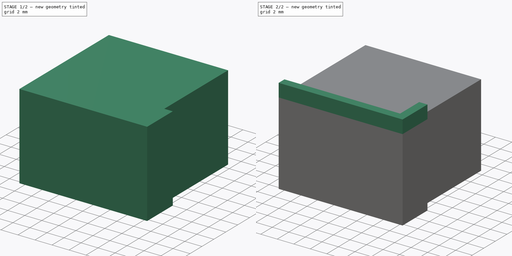
[diagram: build sequence overview — one tinted view per stage of 2, left to right]
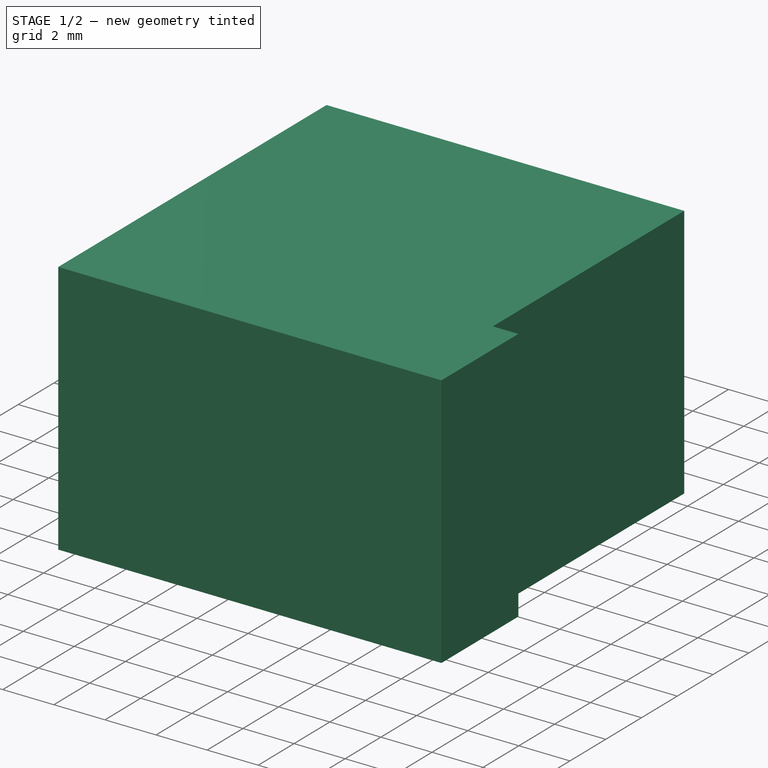
[diagram: stage 1 of 2 — iso view after this stage's code; geometry added in this stage tinted green]
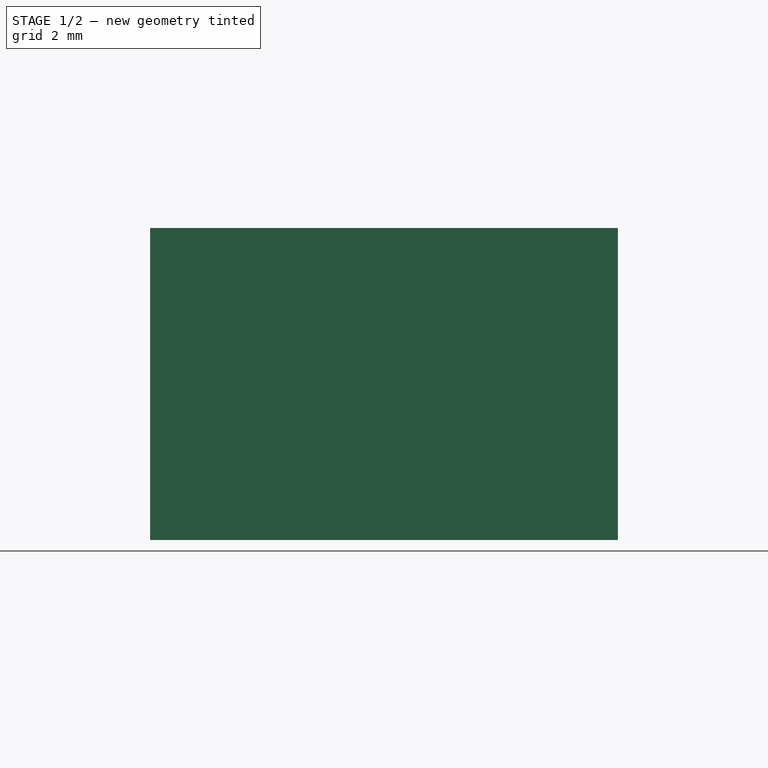
[diagram: stage 1 of 2 — front view after this stage's code; geometry added in this stage tinted green]
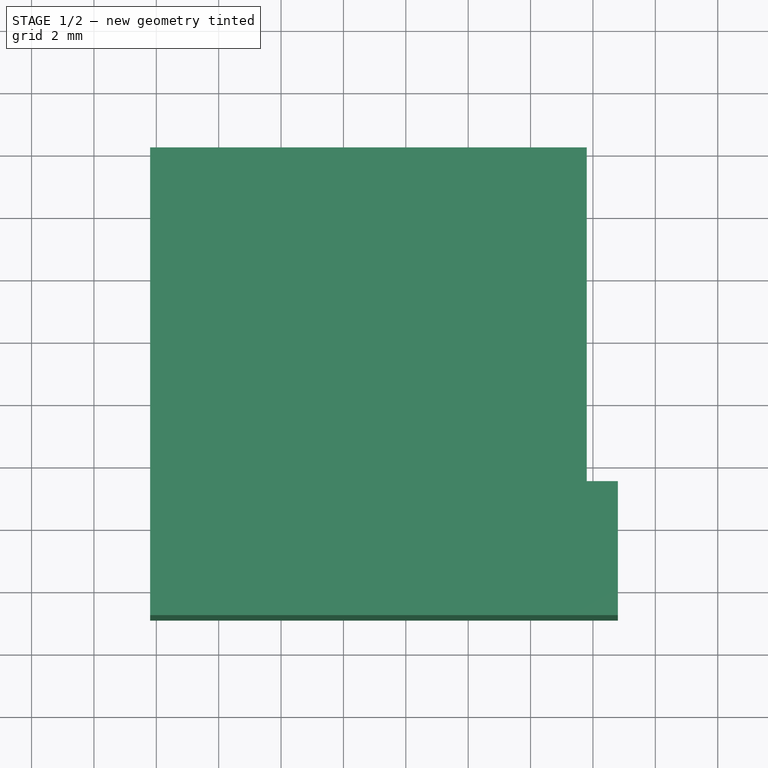
[diagram: stage 1 of 2 — top view after this stage's code; geometry added in this stage tinted green]
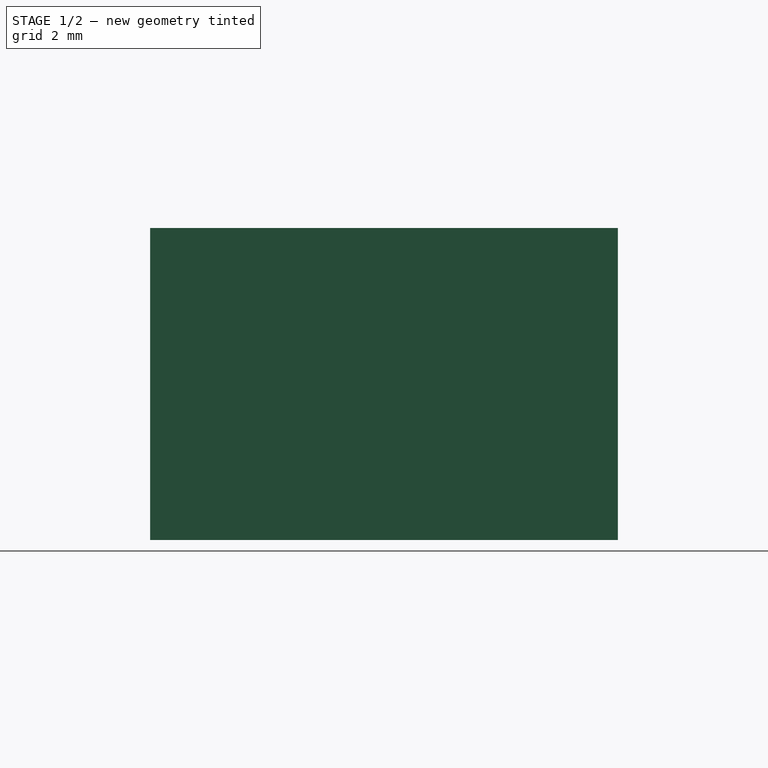
[diagram: stage 1 of 2 — right view after this stage's code; geometry added in this stage tinted green]
FCSTD DOCUMENT  (FreeCAD 0.19R24267 +148 (Git))
Label: digispark
License: Public Domain
LicenseURL: http://en.wikipedia.org/wiki/Public_domain
objects: Part::Feature×5, App::Part×2, Sketcher::SketchObject×2, PartDesign::Pad×2, Spreadsheet::Sheet×1, PartDesign::Body×1
note: 12 computed .brp shape members not serialized (recipe doc carries the construction recipe); baked Part::Feature solids carry a one-line shape summary decoded from their .brp

FEATURE [Part::Feature] Part__Feature  label="Digispark - Board simple"
  shape: bbox 26.5 x 19 x 1.673 mm, 48 faces (baked)
FEATURE [Part::Feature] Part__Feature001  label="TO-252AA-IRF"
  Placement = pos=(41.0682,33.0403,1.6231) rot=(0,0,1;1.5708rad)
  shape: bbox 10.42 x 6.718 x 2.389 mm, 99 faces, 5 solids (baked)
FEATURE [Part::Feature] Part__Feature002  label="8S2 EIAJ SOIC - ATtiny85 20SU_Valor predeterminado"
  Placement = pos=(42.8058,41.0082,1.6231) rot=(1,0,0;1.5708rad)
  shape: bbox 8 x 5.25 x 2.58 mm, 114 faces (baked)
FEATURE [Part::Feature] Part__Feature003  label="DS1021-1x3SF11"
  Placement = pos=(37.32,27.15,1.6231) rot=(0,0,1;0rad)
  shape: bbox 7.62 x 2.54 x 11.6 mm, 100 faces, 4 solids (baked)
FEATURE [Part::Feature] Part__Feature004  label="DS1021-1x6SF11"
  Placement = pos=(50.1501,42.35,1.6231) rot=(0,0,-1;1.5708rad)
  shape: bbox 2.54 x 15.24 x 11.6 mm, 196 faces, 7 solids (baked)
FEATURE [App::Part] DigiSpark_ATtiny85  label="DigiSpark ATtiny85"
  Group = -> [Part__Feature,Part__Feature001,Part__Feature002,Part__Feature003,Part__Feature004]
  Origin = -> Origin
  Placement = pos=(50.2,42.4,0) rot=(0,0,1;3.14159rad)
FEATURE [App::Part] Part  label="digisparkRepositionnedPrt"
  Group = -> [DigiSpark_ATtiny85]
  Origin = -> Origin001
FEATURE [Spreadsheet::Sheet] Spreadsheet  label="digisparkSp"
  cells = A2=supportLarg; B2(supportLarg)=14; C2=care; A3=supportL_long; B3(supportL_long)==supportLarg; A4=supportL_larg; B4(supportL_larg)=3.3; C4=mesuré; A5=supportL_ep; B5(supportL_ep)=1; A6=supportL_haut; B6(supportL_haut)=1.6
FEATURE [Sketcher::SketchObject] Sketch
  FullyConstrained = true
  MapMode = 5
  Support = -> [XY_Plane002]
  expr: Constraints[26] = <<digisparkSp>>.supportL_larg
  expr: Constraints[14] = <<digisparkSp>>.supportL_ep
  expr: Constraints[5] = <<digisparkSp>>.supportLarg
  sketch-geometry (10):
    g0: LineSegment StartX=1.8 StartY=12.1 StartZ=0 EndX=15.8 EndY=12.1 EndZ=0
    g1: LineSegment StartX=15.8 StartY=12.1 StartZ=0 EndX=15.8 EndY=1.4 EndZ=0
    g2: LineSegment StartX=1.8 StartY=-1.9 StartZ=0 EndX=1.8 EndY=12.1 EndZ=0
    g3: LineSegment StartX=1.8 StartY=-1.9 StartZ=0 EndX=1.8 EndY=-2.9 EndZ=0
    g4: LineSegment StartX=1.8 StartY=-2.9 StartZ=0 EndX=16.8 EndY=-2.9 EndZ=0
    g5: LineSegment StartX=16.8 StartY=-2.9 StartZ=0 EndX=16.8 EndY=1.4 EndZ=0
    g6: LineSegment StartX=16.8 StartY=1.4 StartZ=0 EndX=15.8 EndY=1.4 EndZ=0
    g7: GeomPoint X=1.8 Y=-1.9 Z=0
    g8: LineSegment StartX=1.8 StartY=-1.9 StartZ=0 EndX=15.8 EndY=-1.9 EndZ=0
    g9: LineSegment StartX=15.8 StartY=-1.9 StartZ=0 EndX=15.8 EndY=1.4 EndZ=0
  constraints (27):
    c: Coincident(g0,g1)
    c: Coincident(g2,g0)
    c: Horizontal(g0)
    c: Vertical(g1)
    c: Vertical(g2)
    c: DistanceX(g0,g0) = 14
    c: Vertical(g3)
    c: Coincident(g3,g4)
    c: Horizontal(g4)
    c: Coincident(g4,g5)
    c: Vertical(g5)
    c: Coincident(g5,g6)
    c: Horizontal(g6)
    c: Equal(g6,g3)
    c: DistanceY(g3,g2) = 1
    c: DistanceX(g0) = 15.8
    c: DistanceY(g0) = 12.1
    c: Coincident(g1,g6)
    c: Coincident(g3,g2)
    c: Coincident(g7,g2)
    c: Coincident(g8,g2)
    c: Horizontal(g8)
    c: Coincident(g9,g8)
    c: Coincident(g9,g1)
    c: Vertical(g9)
    c: Equal(g0,g2)
    c: DistanceY(g8,g1) = 3.3
FEATURE [PartDesign::Pad] Pad
  Direction = (1,1,1)
  Length = 10
  Length2 = 100
  Profile = -> Sketch
  Reversed = true
  Type = 0
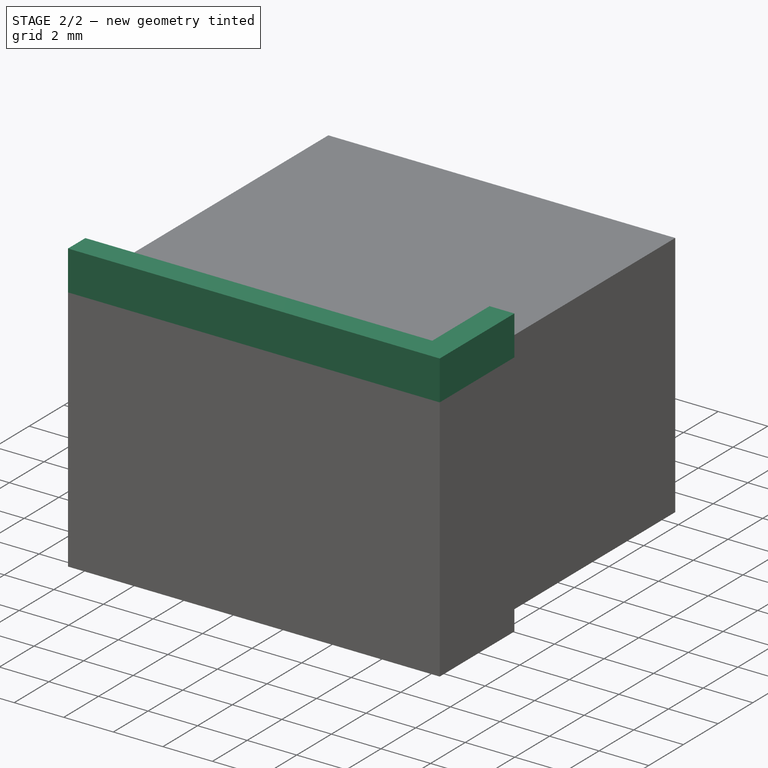
[diagram: stage 2 of 2 — iso view after this stage's code; geometry added in this stage tinted green]
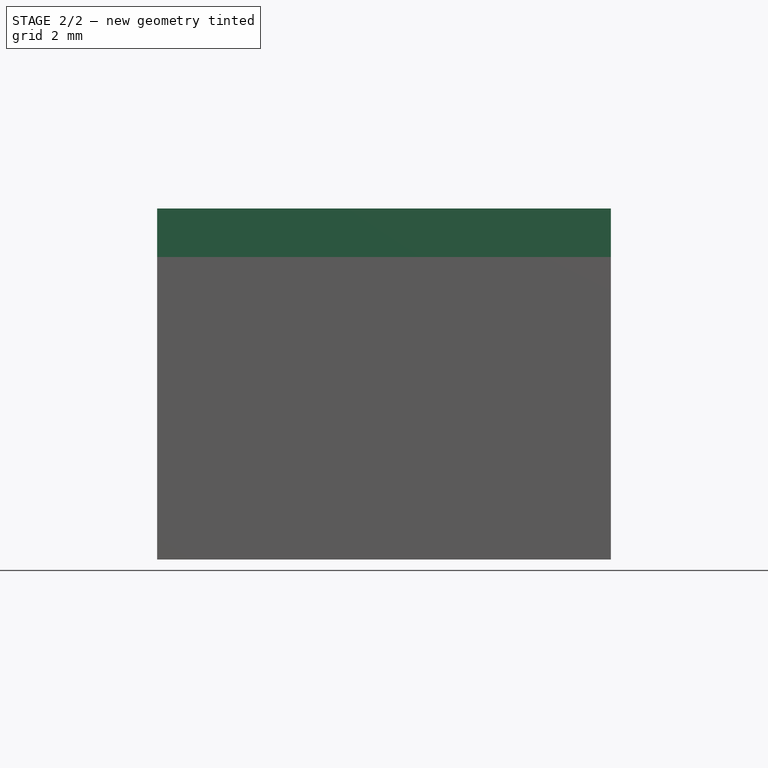
[diagram: stage 2 of 2 — front view after this stage's code; geometry added in this stage tinted green]
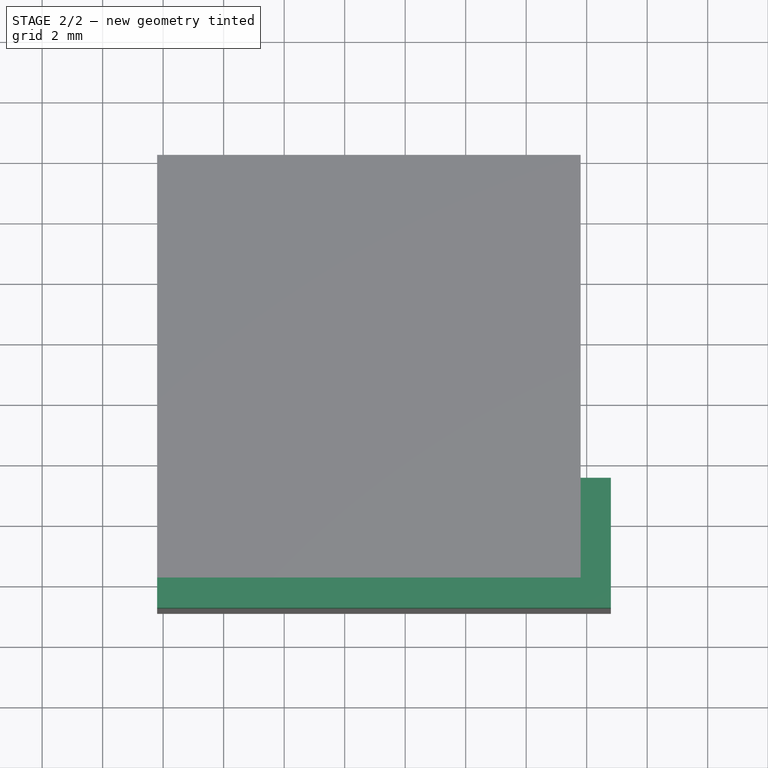
[diagram: stage 2 of 2 — top view after this stage's code; geometry added in this stage tinted green]
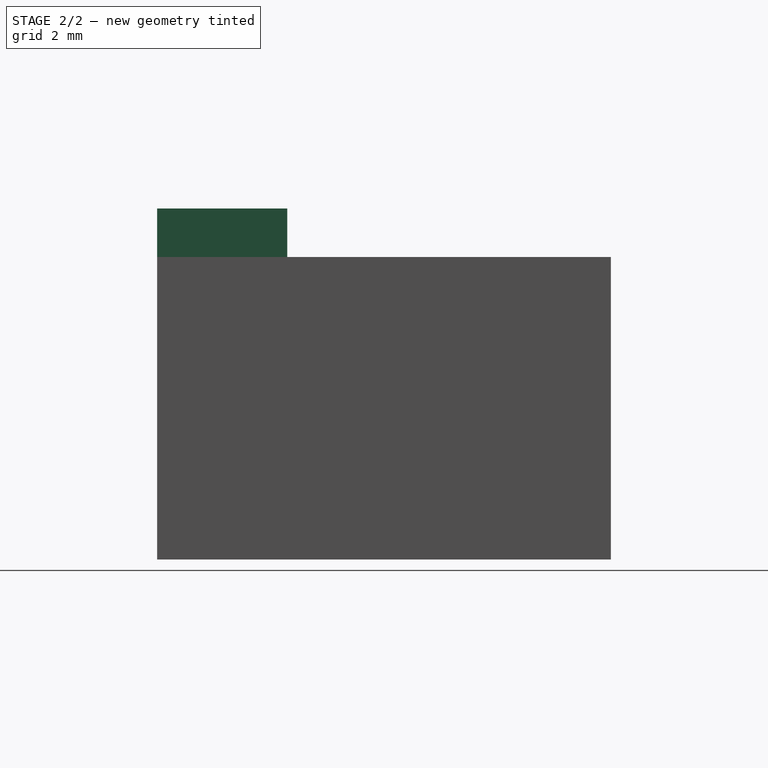
[diagram: stage 2 of 2 — right view after this stage's code; geometry added in this stage tinted green]
FEATURE [Sketcher::SketchObject] Sketch001
  ExternalGeometry = -> [Sketch]
  FullyConstrained = true
  MapMode = 5
  Support = -> [XY_Plane002]
  sketch-geometry (6):
    g0: LineSegment StartX=1.8 StartY=-2.9 StartZ=0 EndX=16.8 EndY=-2.9 EndZ=0
    g1: LineSegment StartX=16.8 StartY=-2.9 StartZ=0 EndX=16.8 EndY=1.4 EndZ=0
    g2: LineSegment StartX=16.8 StartY=1.4 StartZ=0 EndX=15.8 EndY=1.4 EndZ=0
    g3: LineSegment StartX=15.8 StartY=1.4 StartZ=0 EndX=15.8 EndY=-1.9 EndZ=0
    g4: LineSegment StartX=15.8 StartY=-1.9 StartZ=0 EndX=1.8 EndY=-1.9 EndZ=0
    g5: LineSegment StartX=1.8 StartY=-1.9 StartZ=0 EndX=1.8 EndY=-2.9 EndZ=0
  constraints (13):
    c: Coincident(g-5,g0)
    c: Coincident(g0,g-5)
    c: Coincident(g0,g1)
    c: Coincident(g1,g-4)
    c: Coincident(g1,g2)
    c: Coincident(g2,g-4)
    c: Coincident(g2,g3)
    c: Vertical(g3)
    c: Coincident(g3,g4)
    c: Horizontal(g4)
    c: Coincident(g4,g5)
    c: Coincident(g5,g0)
    c: Coincident(g4,g-6)
FEATURE [PartDesign::Pad] Pad001
  BaseFeature = -> Pad
  Direction = (1,1,1)
  Length = 1.6
  Length2 = 100
  Profile = -> Sketch001
  Type = 0
  expr: Length = <<digisparkSp>>.supportL_haut
FEATURE [PartDesign::Body] Body  label="digisparkSupportBdy"
  Group = -> [Sketch,Pad,Sketch001,Pad001]
  Origin = -> Origin002
  Tip = -> Pad001
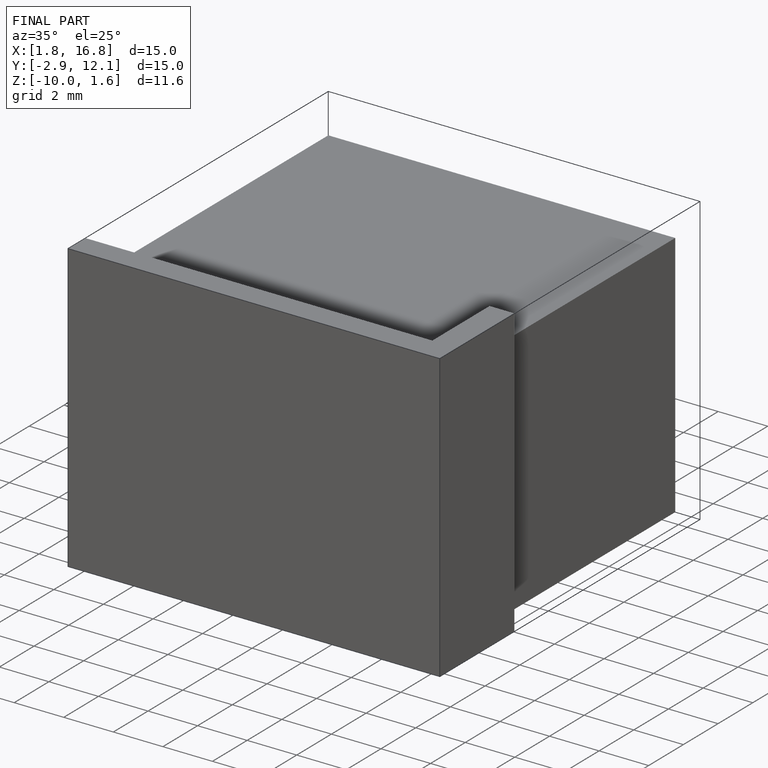
[diagram: finished part — iso view with bounding-box wireframe]
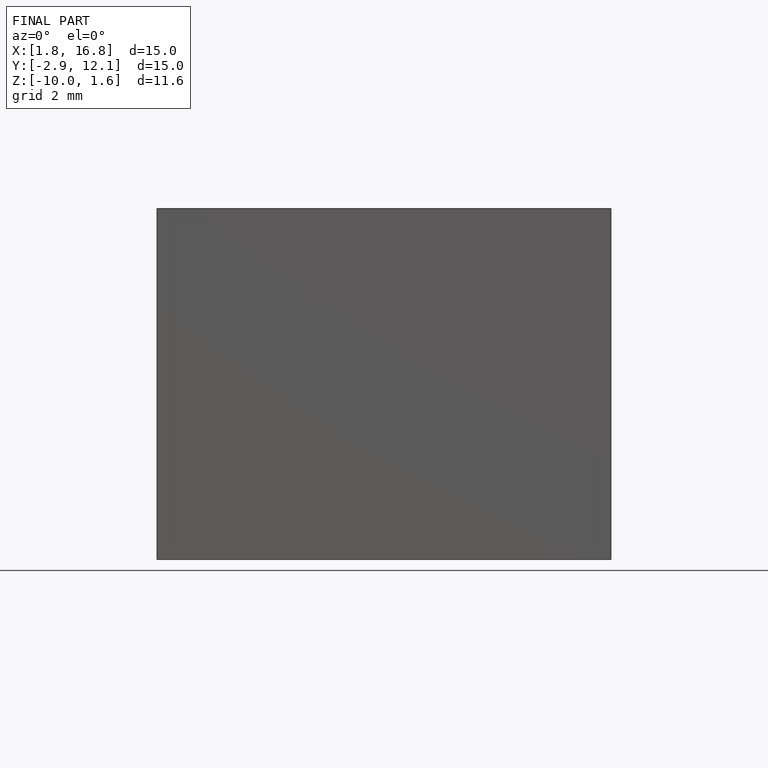
[diagram: finished part — front view with bounding-box wireframe]
